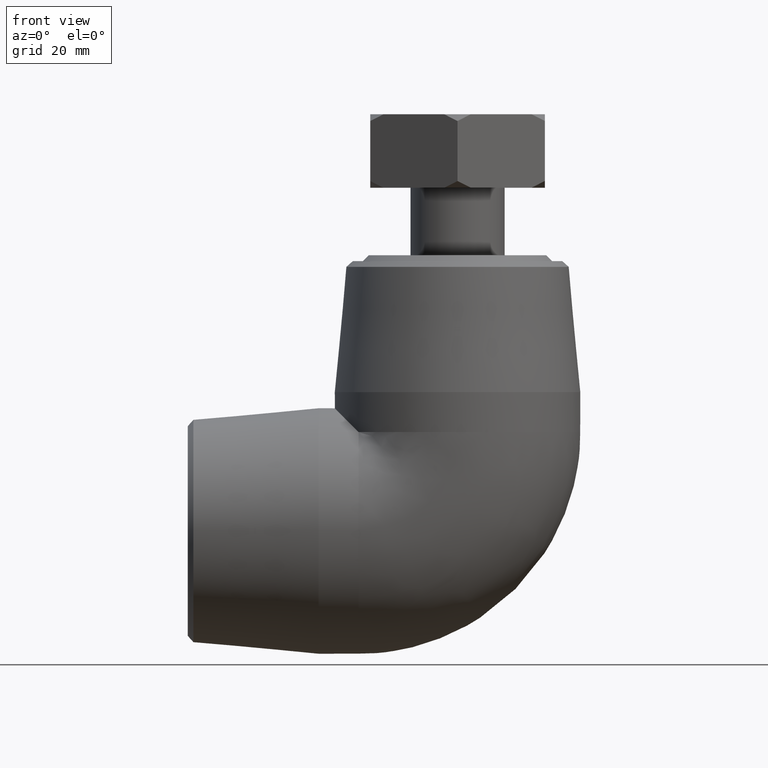
[diagram: clean part render]
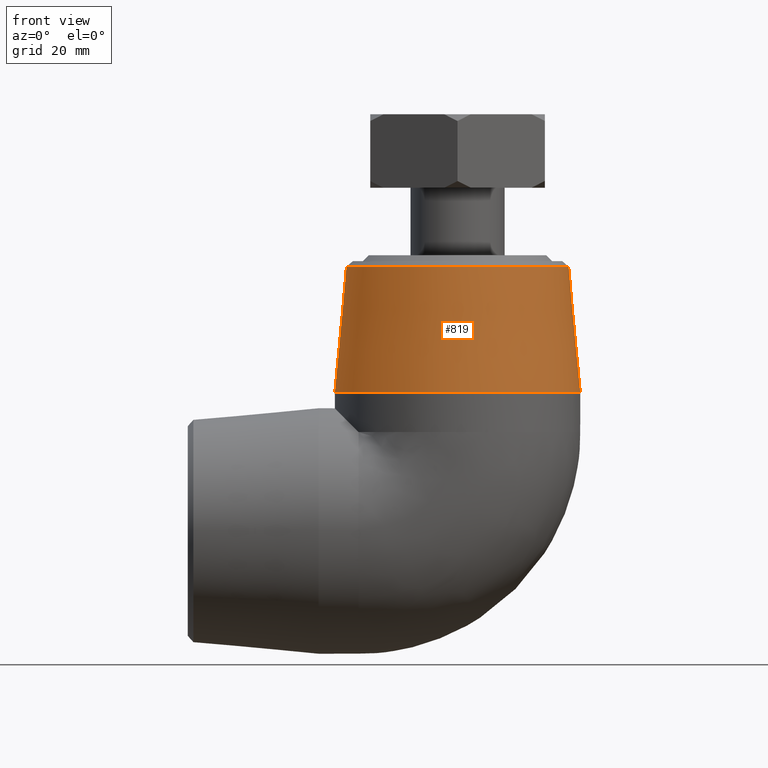
[diagram: same view with one face highlighted and labeled with its STEP entity id]
A machine part, front view. The second image highlights one B-rep face of the part: STEP entity #819.
In plain terms, the highlighted conical surface has half-angle 5.364 deg.
Its self-contained STEP definition (entity closure, byte-faithful):
#18=B_SPLINE_CURVE_WITH_KNOTS('',3,(#1469,#1470,#1471,#1472,#1473,#1474,
#1475,#1476,#1477,#1478,#1479,#1480,#1481,#1482,#1483,#1484,#1485,#1486,
#1487,#1488,#1489,#1490,#1491,#1492,#1493,#1494,#1495,#1496,#1497,#1498,
#1499,#1500,#1501,#1502),.UNSPECIFIED.,.T.,.F.,(4,2,2,2,2,2,2,2,2,2,2,2,
2,2,2,2,4),(0.,0.346005722043351,0.692011444086702,1.03993894678165,1.3878664494766,
1.73579395217155,2.0837214548665,2.42972717690985,2.7757328989532,3.14005919441716,
3.50438548988112,3.86229953056835,4.22021357125558,4.57812761194281,4.93604165263004,
5.300367948094,5.66469424355796),.UNSPECIFIED.);
#135=FACE_BOUND('',#276,.T.);
#136=FACE_BOUND('',#277,.T.);
#196=FACE_OUTER_BOUND('',#275,.T.);
#275=EDGE_LOOP('',(#703));
#276=EDGE_LOOP('',(#704));
#277=EDGE_LOOP('',(#705));
#361=CIRCLE('',#913,37.0766809217875);
#362=CIRCLE('',#916,41.);
#440=VERTEX_POINT('',#1462);
#441=VERTEX_POINT('',#1466);
#442=VERTEX_POINT('',#1468);
#538=EDGE_CURVE('',#440,#440,#361,.T.);
#539=EDGE_CURVE('',#441,#441,#362,.T.);
#540=EDGE_CURVE('',#442,#442,#18,.T.);
#703=ORIENTED_EDGE('',*,*,#539,.F.);
#704=ORIENTED_EDGE('',*,*,#540,.T.);
#705=ORIENTED_EDGE('',*,*,#538,.F.);
#782=CONICAL_SURFACE('',#915,38.95,5.3639542176943);
#819=ADVANCED_FACE('',(#196,#135,#136),#782,.T.);
#913=AXIS2_PLACEMENT_3D('',#1463,#1110,#1111);
#915=AXIS2_PLACEMENT_3D('',#1465,#1114,#1115);
#916=AXIS2_PLACEMENT_3D('',#1467,#1116,#1117);
#1110=DIRECTION('center_axis',(0.,0.,1.));
#1111=DIRECTION('ref_axis',(-6.12323399573677E-17,-1.,0.));
#1114=DIRECTION('center_axis',(6.12323399573677E-17,-1.5419764230905E-18,
-1.));
#1115=DIRECTION('ref_axis',(0.,1.,0.));
#1116=DIRECTION('center_axis',(6.12323399573677E-17,-1.5419764230905E-18,
-1.));
#1117=DIRECTION('ref_axis',(-1.,0.,-6.12323399573676E-17));
#1462=CARTESIAN_POINT('',(-9.93627211600909E-15,37.0766809217875,88.1182763614504));
#1463=CARTESIAN_POINT('Origin',(-7.66598018531534E-15,0.,88.1182763614504));
#1465=CARTESIAN_POINT('Origin',(-4.1740045070939E-15,-3.36664852374758E-17,
68.1666666666667));
#1466=CARTESIAN_POINT('',(-2.8370984180247E-15,41.,46.3333333333333));
#1467=CARTESIAN_POINT('Origin',(-2.8370984180247E-15,-6.73329704749516E-17,
46.3333333333333));
#1468=CARTESIAN_POINT('',(9.38542583207337,37.398527974994,72.339312871797));
#1469=CARTESIAN_POINT('Ctrl Pts',(9.38542583207336,37.3985279749941,72.3393128717971));
#1470=CARTESIAN_POINT('Ctrl Pts',(9.35918202023796,37.2939530789097,73.4876147170218));
#1471=CARTESIAN_POINT('Ctrl Pts',(9.10201372872263,37.2424863085223,74.7103167042037));
#1472=CARTESIAN_POINT('Ctrl Pts',(8.1170741914475,37.2542328824674,76.9507875969112));
#1473=CARTESIAN_POINT('Ctrl Pts',(7.3894502310545,37.3140150111509,77.9686379236323));
#1474=CARTESIAN_POINT('Ctrl Pts',(5.72912594144926,37.4524792789773,79.5732039826066));
#1475=CARTESIAN_POINT('Ctrl Pts',(4.68240947466268,37.5401933866601,80.2675861802235));
#1476=CARTESIAN_POINT('Ctrl Pts',(2.39781590284673,37.6685127783826,81.1874905751105));
#1477=CARTESIAN_POINT('Ctrl Pts',(1.15975834231649,37.7062640138496,81.4129605029022));
#1478=CARTESIAN_POINT('Ctrl Pts',(-1.1597583423165,37.7062640138496,81.4129605029022));
#1479=CARTESIAN_POINT('Ctrl Pts',(-2.39781590284673,37.6685127783826,81.1874905751105));
#1480=CARTESIAN_POINT('Ctrl Pts',(-4.68240947466268,37.5401933866602,80.2675861802236));
#1481=CARTESIAN_POINT('Ctrl Pts',(-5.72912594144927,37.4524792789773,79.5732039826066));
#1482=CARTESIAN_POINT('Ctrl Pts',(-7.38945023105451,37.3140150111509,77.9686379236323));
#1483=CARTESIAN_POINT('Ctrl Pts',(-8.11707419144751,37.2542328824674,76.9507875969112));
#1484=CARTESIAN_POINT('Ctrl Pts',(-9.10201372872264,37.2424863085223,74.7103167042037));
#1485=CARTESIAN_POINT('Ctrl Pts',(-9.35918202023797,37.2939530789097,73.4876147170218));
#1486=CARTESIAN_POINT('Ctrl Pts',(-9.41305922116411,37.5086399819977,71.1302098694695));
#1487=CARTESIAN_POINT('Ctrl Pts',(-9.18947377542954,37.6914792298821,69.8479610975961));
#1488=CARTESIAN_POINT('Ctrl Pts',(-8.23725622866267,38.1366545263766,67.4986144055875));
#1489=CARTESIAN_POINT('Ctrl Pts',(-7.50905864007235,38.3953020930227,66.4306429948522));
#1490=CARTESIAN_POINT('Ctrl Pts',(-5.83452179093109,38.8434328160888,64.7600124725114));
#1491=CARTESIAN_POINT('Ctrl Pts',(-4.78070402426102,39.0634893591952,64.0389447893487));
#1492=CARTESIAN_POINT('Ctrl Pts',(-2.46023658379362,39.3682772852435,63.0785406997474));
#1493=CARTESIAN_POINT('Ctrl Pts',(-1.19304680229077,39.4501738503251,62.8396118380008));
#1494=CARTESIAN_POINT('Ctrl Pts',(1.19304680229076,39.4501738503251,62.8396118380008));
#1495=CARTESIAN_POINT('Ctrl Pts',(2.46023658379361,39.3682772852435,63.0785406997474));
#1496=CARTESIAN_POINT('Ctrl Pts',(4.780704024261,39.0634893591952,64.0389447893487));
#1497=CARTESIAN_POINT('Ctrl Pts',(5.83452179093108,38.8434328160888,64.7600124725114));
#1498=CARTESIAN_POINT('Ctrl Pts',(7.50905864007233,38.3953020930227,66.4306429948522));
#1499=CARTESIAN_POINT('Ctrl Pts',(8.23725622866266,38.1366545263766,67.4986144055875));
#1500=CARTESIAN_POINT('Ctrl Pts',(9.18947377542952,37.6914792298821,69.8479610975961));
#1501=CARTESIAN_POINT('Ctrl Pts',(9.4130592211641,37.5086399819977,71.1302098694695));
#1502=CARTESIAN_POINT('Ctrl Pts',(9.38542583207336,37.398527974994,72.3393128717971));